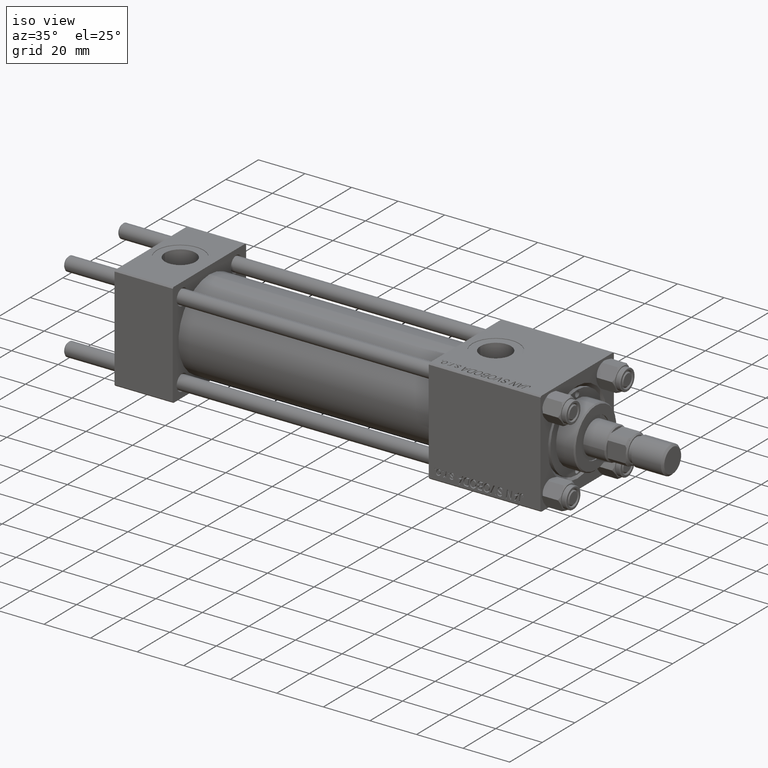
[diagram: clean part render]
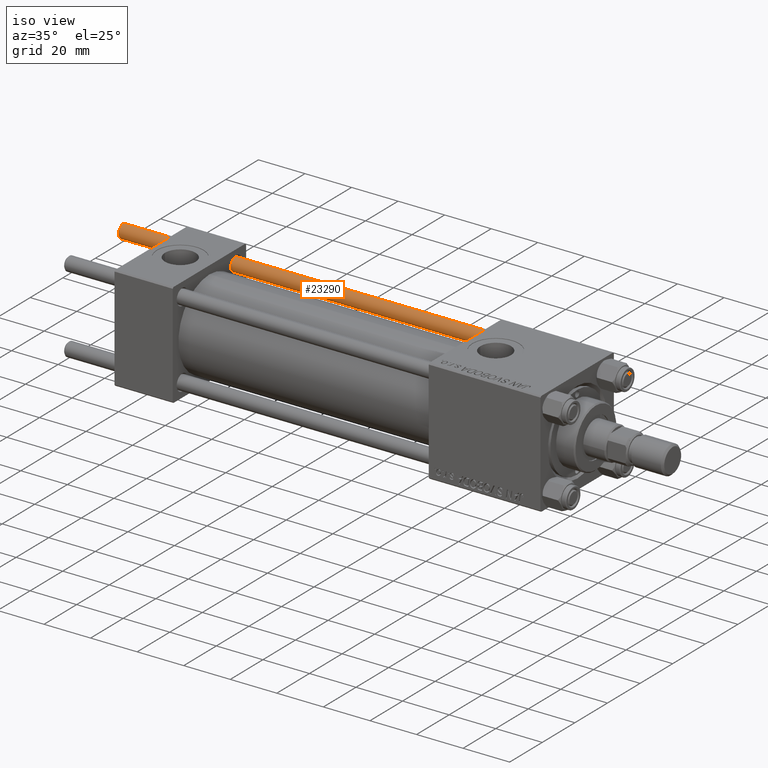
[diagram: same view with one face highlighted and labeled with its STEP entity id]
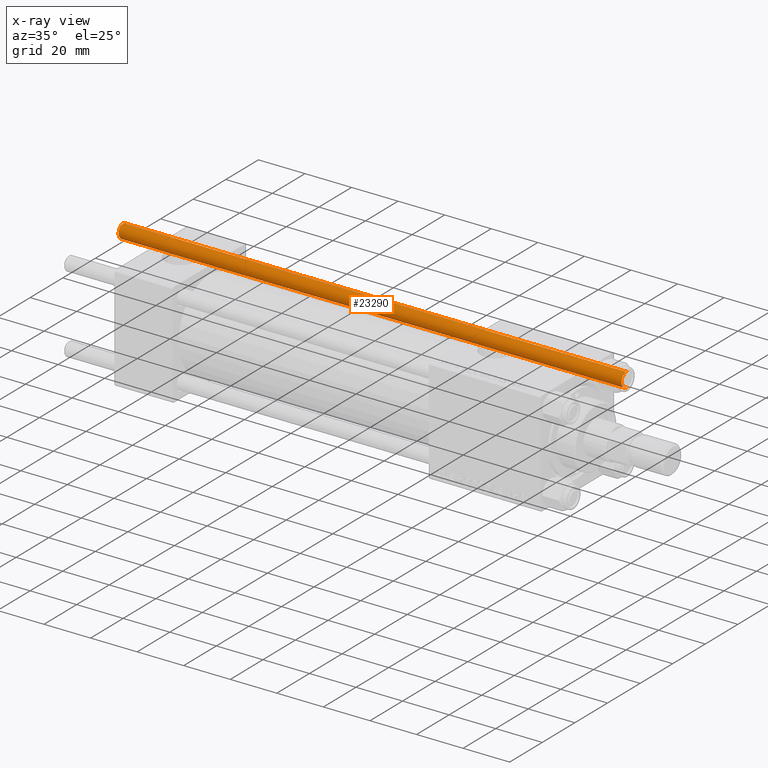
[diagram: x-ray of the same camera — body ghosted, the highlighted face saturated]
A machine part, iso view. The second image highlights one B-rep face of the part: STEP entity #23290.
The next image is the same camera in x-ray: the body ghosted, the highlighted face saturated — about 0% of this face is hidden behind the body in this view.
In plain terms, the highlighted cylindrical surface (edge-blend (fillet) strip) has radius 3 mm, axis along (-1, -0, -0).
Its self-contained STEP definition (entity closure, byte-faithful):
#3335 = EDGE_CURVE ( 'NONE', #11174, #32628, #27302, .T. ) ;
#5065 = DIRECTION ( 'NONE',  ( -0.000000000000000000, -0.000000000000000000, -1.000000000000000000 ) ) ;
#5351 = CIRCLE ( 'NONE', #34879, 3.000000000000000444 ) ;
#6522 = EDGE_CURVE ( 'NONE', #34365, #11174, #31335, .T. ) ;
#6971 = VERTEX_POINT ( 'NONE', #20417 ) ;
#7527 = DIRECTION ( 'NONE',  ( -0.000000000000000000, -0.000000000000000000, -1.000000000000000000 ) ) ;
#8869 = CYLINDRICAL_SURFACE ( 'NONE', #16358, 3.000000000000000444 ) ;
#11174 = VERTEX_POINT ( 'NONE', #47701 ) ;
#11300 = ORIENTED_EDGE ( 'NONE', *, *, #32419, .F. ) ;
#12572 = FACE_OUTER_BOUND ( 'NONE', #48158, .T. ) ;
#12761 = DIRECTION ( 'NONE',  ( 1.000000000000000000, 0.000000000000000000, 0.000000000000000000 ) ) ;
#15724 = CARTESIAN_POINT ( 'NONE',  ( -3.000000000000000444, 0.000000000000000000, 217.0000000000000000 ) ) ;
#16358 = AXIS2_PLACEMENT_3D ( 'NONE', #24993, #21040, #41360 ) ;
#16362 = AXIS2_PLACEMENT_3D ( 'NONE', #37818, #17470, #18252 ) ;
#17470 = DIRECTION ( 'NONE',  ( -0.000000000000000000, -0.000000000000000000, 1.000000000000000000 ) ) ;
#18252 = DIRECTION ( 'NONE',  ( 1.000000000000000000, 0.000000000000000000, 0.000000000000000000 ) ) ;
#20417 = CARTESIAN_POINT ( 'NONE',  ( 3.000000000000000444, 3.673940397442060361E-16, 216.5000000000000000 ) ) ;
#21040 = DIRECTION ( 'NONE',  ( -0.000000000000000000, -0.000000000000000000, -1.000000000000000000 ) ) ;
#22277 = EDGE_CURVE ( 'NONE', #6971, #34365, #5351, .T. ) ;
#23290 = ADVANCED_FACE ( 'NONE', ( #12572 ), #8869, .T. ) ;
#24993 = CARTESIAN_POINT ( 'NONE',  ( 0.000000000000000000, 0.000000000000000000, 217.0000000000000000 ) ) ;
#27302 = CIRCLE ( 'NONE', #16362, 3.000000000000000444 ) ;
#30569 = ORIENTED_EDGE ( 'NONE', *, *, #3335, .T. ) ;
#31335 = LINE ( 'NONE', #15724, #51712 ) ;
#32419 = EDGE_CURVE ( 'NONE', #6971, #32628, #49419, .T. ) ;
#32628 = VERTEX_POINT ( 'NONE', #44356 ) ;
#33486 = ORIENTED_EDGE ( 'NONE', *, *, #22277, .T. ) ;
#34365 = VERTEX_POINT ( 'NONE', #49638 ) ;
#34879 = AXIS2_PLACEMENT_3D ( 'NONE', #43921, #52076, #12761 ) ;
#37818 = CARTESIAN_POINT ( 'NONE',  ( 0.000000000000000000, 0.000000000000000000, 0.5000000000000559552 ) ) ;
#41360 = DIRECTION ( 'NONE',  ( -1.000000000000000000, 0.000000000000000000, 0.000000000000000000 ) ) ;
#41889 = VECTOR ( 'NONE', #5065, 1000.000000000000000 ) ;
#43723 = ORIENTED_EDGE ( 'NONE', *, *, #6522, .T. ) ;
#43921 = CARTESIAN_POINT ( 'NONE',  ( 0.000000000000000000, 0.000000000000000000, 216.5000000000000000 ) ) ;
#44356 = CARTESIAN_POINT ( 'NONE',  ( 3.000000000000000444, 3.673940397442060361E-16, 0.5000000000000559552 ) ) ;
#47701 = CARTESIAN_POINT ( 'NONE',  ( -3.000000000000000444, 0.000000000000000000, 0.5000000000000559552 ) ) ;
#48158 = EDGE_LOOP ( 'NONE', ( #11300, #33486, #43723, #30569 ) ) ;
#48906 = CARTESIAN_POINT ( 'NONE',  ( 3.000000000000000444, 3.673940397442060361E-16, 217.0000000000000000 ) ) ;
#49419 = LINE ( 'NONE', #48906, #41889 ) ;
#49638 = CARTESIAN_POINT ( 'NONE',  ( -3.000000000000000444, 0.000000000000000000, 216.5000000000000000 ) ) ;
#51712 = VECTOR ( 'NONE', #7527, 1000.000000000000000 ) ;
#52076 = DIRECTION ( 'NONE',  ( 0.000000000000000000, 0.000000000000000000, -1.000000000000000000 ) ) ;